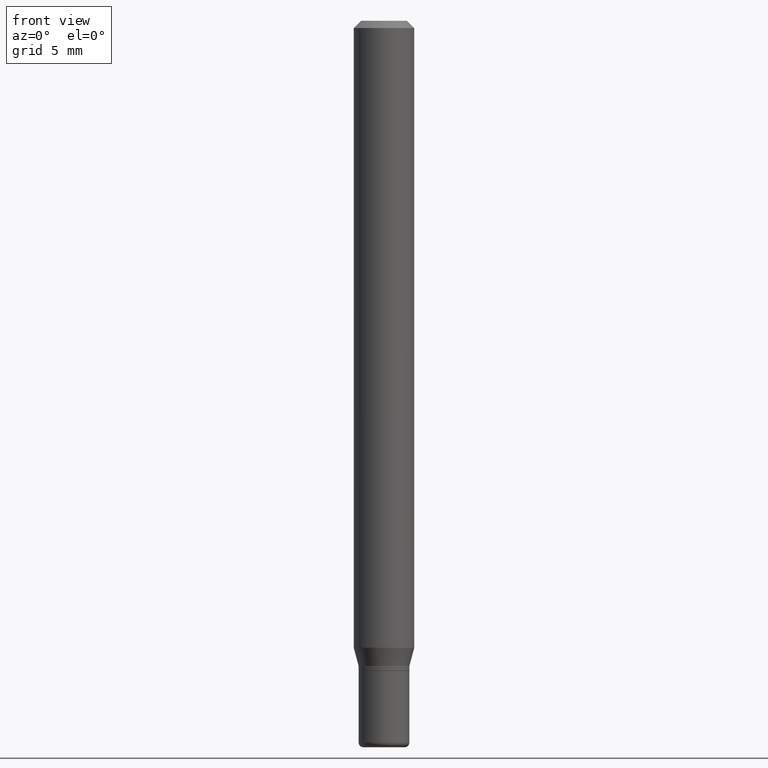
[diagram: clean part render]
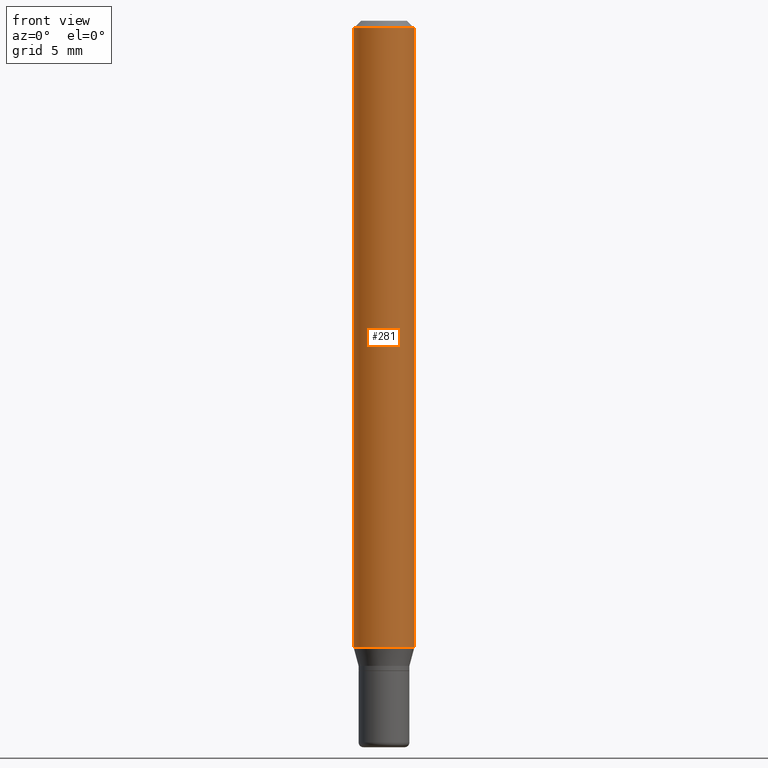
[diagram: same view with one face highlighted and labeled with its STEP entity id]
A machine part, front view. The second image highlights one B-rep face of the part: STEP entity #281.
In plain terms, the highlighted cylindrical surface (edge-blend (fillet) strip) has radius 1.5875 mm, axis along (-0, 0, 1).
Its self-contained STEP definition (entity closure, byte-faithful):
#2 = CIRCLE ( 'NONE', #40, 0.06250000000000000000 ) ;
#8 = CARTESIAN_POINT ( 'NONE',  ( -0.06250000000000000000, -4.076260075986595677E-15, -1.294679491924311421 ) ) ;
#14 = LINE ( 'NONE', #349, #327 ) ;
#23 = CARTESIAN_POINT ( 'NONE',  ( 0.000000000000000000, 0.000000000000000000, 0.000000000000000000 ) ) ;
#24 = DIRECTION ( 'NONE',  ( 1.000000000000000000, -6.982962677686266711E-15, 4.876176775795935793E-29 ) ) ;
#37 = EDGE_CURVE ( 'NONE', #287, #166, #2, .T. ) ;
#40 = AXIS2_PLACEMENT_3D ( 'NONE', #370, #143, #44 ) ;
#44 = DIRECTION ( 'NONE',  ( 1.000000000000000000, -6.982962677686266711E-15, 0.000000000000000000 ) ) ;
#69 = DIRECTION ( 'NONE',  ( 1.000000000000000000, -6.982962677686262766E-15, 0.000000000000000000 ) ) ;
#74 = CYLINDRICAL_SURFACE ( 'NONE', #465, 0.06250000000000000000 ) ;
#75 = DIRECTION ( 'NONE',  ( -2.445468806185136877E-29, 3.491481338843145188E-15, 1.000000000000000000 ) ) ;
#84 = AXIS2_PLACEMENT_3D ( 'NONE', #233, #157, #69 ) ;
#98 = CIRCLE ( 'NONE', #84, 0.06250000000000000000 ) ;
#143 = DIRECTION ( 'NONE',  ( -2.445468806185136597E-29, 3.491481338843145583E-15, 1.000000000000000000 ) ) ;
#155 = DIRECTION ( 'NONE',  ( -2.445468806185136597E-29, 3.491481338843145583E-15, 1.000000000000000000 ) ) ;
#157 = DIRECTION ( 'NONE',  ( -2.445468806185136597E-29, 3.491481338843145583E-15, 1.000000000000000000 ) ) ;
#159 = CARTESIAN_POINT ( 'NONE',  ( 0.06250000000000000000, -4.956784453192050752E-15, -1.294679491924311421 ) ) ;
#166 = VERTEX_POINT ( 'NONE', #307 ) ;
#228 = CARTESIAN_POINT ( 'NONE',  ( -0.06250000000000000000, -1.842271543109589479E-15, -0.01499999999999970281 ) ) ;
#233 = CARTESIAN_POINT ( 'NONE',  ( 3.166098311508524908E-29, -4.520349285836658294E-15, -1.294679491924311421 ) ) ;
#236 = VECTOR ( 'NONE', #75, 39.37007874015748143 ) ;
#243 = EDGE_LOOP ( 'NONE', ( #284, #482, #381, #495 ) ) ;
#281 = ADVANCED_FACE ( 'NONE', ( #510 ), #74, .T. ) ;
#284 = ORIENTED_EDGE ( 'NONE', *, *, #430, .F. ) ;
#287 = VERTEX_POINT ( 'NONE', #228 ) ;
#306 = EDGE_CURVE ( 'NONE', #468, #369, #98, .T. ) ;
#307 = CARTESIAN_POINT ( 'NONE',  ( 0.06250000000000000000, -4.888073874380378612E-16, -0.01499999999999970281 ) ) ;
#327 = VECTOR ( 'NONE', #462, 39.37007874015748143 ) ;
#349 = CARTESIAN_POINT ( 'NONE',  ( 0.06250000000000000000, -4.364351673553916694E-16, 3.047610484872459871E-30 ) ) ;
#369 = VERTEX_POINT ( 'NONE', #159 ) ;
#370 = CARTESIAN_POINT ( 'NONE',  ( 3.668203209277632395E-31, -5.237222008264614861E-17, -0.01499999999999970281 ) ) ;
#381 = ORIENTED_EDGE ( 'NONE', *, *, #499, .T. ) ;
#403 = CARTESIAN_POINT ( 'NONE',  ( -0.06250000000000000000, 4.440892098500626162E-16, -3.074334431409316114E-30 ) ) ;
#430 = EDGE_CURVE ( 'NONE', #468, #287, #439, .T. ) ;
#439 = LINE ( 'NONE', #403, #236 ) ;
#462 = DIRECTION ( 'NONE',  ( -2.445468806185136877E-29, 3.491481338843145188E-15, 1.000000000000000000 ) ) ;
#465 = AXIS2_PLACEMENT_3D ( 'NONE', #23, #155, #24 ) ;
#468 = VERTEX_POINT ( 'NONE', #8 ) ;
#482 = ORIENTED_EDGE ( 'NONE', *, *, #306, .T. ) ;
#495 = ORIENTED_EDGE ( 'NONE', *, *, #37, .F. ) ;
#499 = EDGE_CURVE ( 'NONE', #369, #166, #14, .T. ) ;
#510 = FACE_OUTER_BOUND ( 'NONE', #243, .T. ) ;